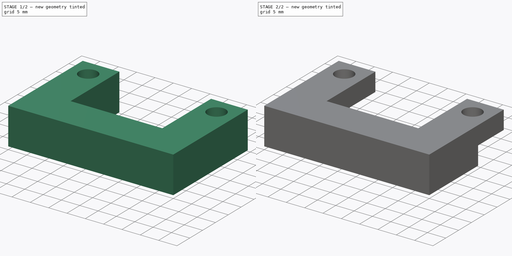
[diagram: build sequence overview — one tinted view per stage of 2, left to right]
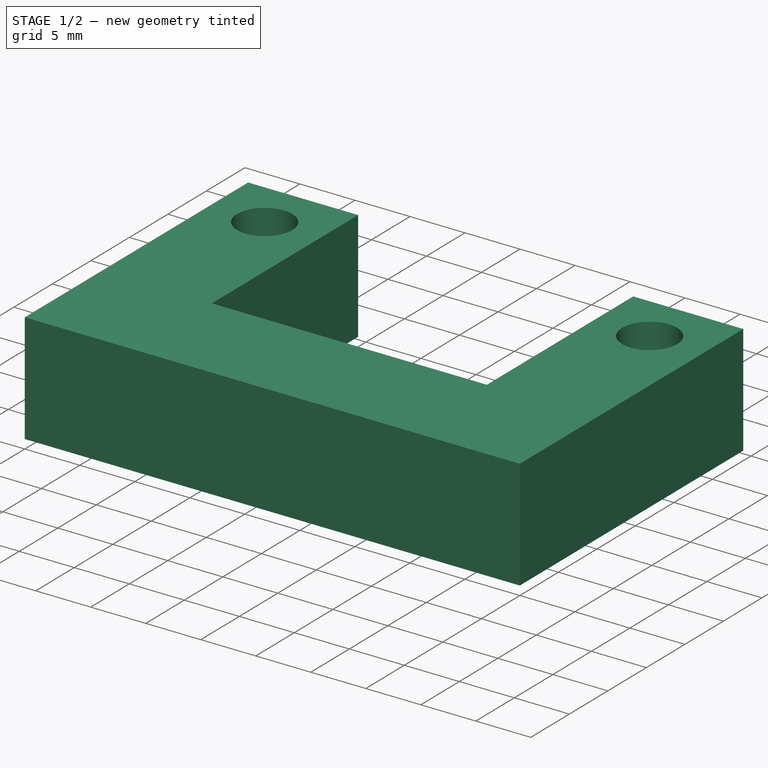
[diagram: stage 1 of 2 — iso view after this stage's code; geometry added in this stage tinted green]
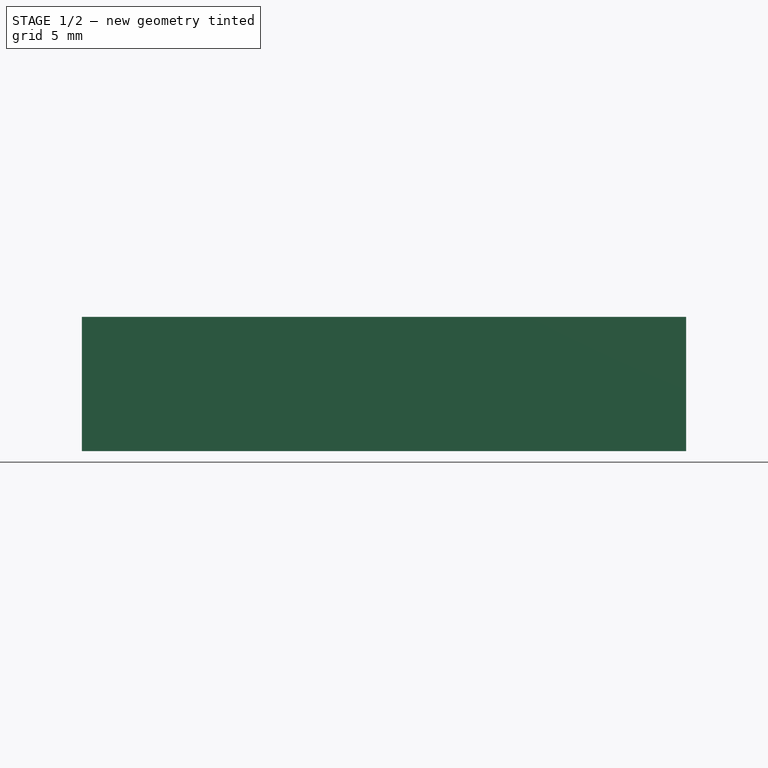
[diagram: stage 1 of 2 — front view after this stage's code; geometry added in this stage tinted green]
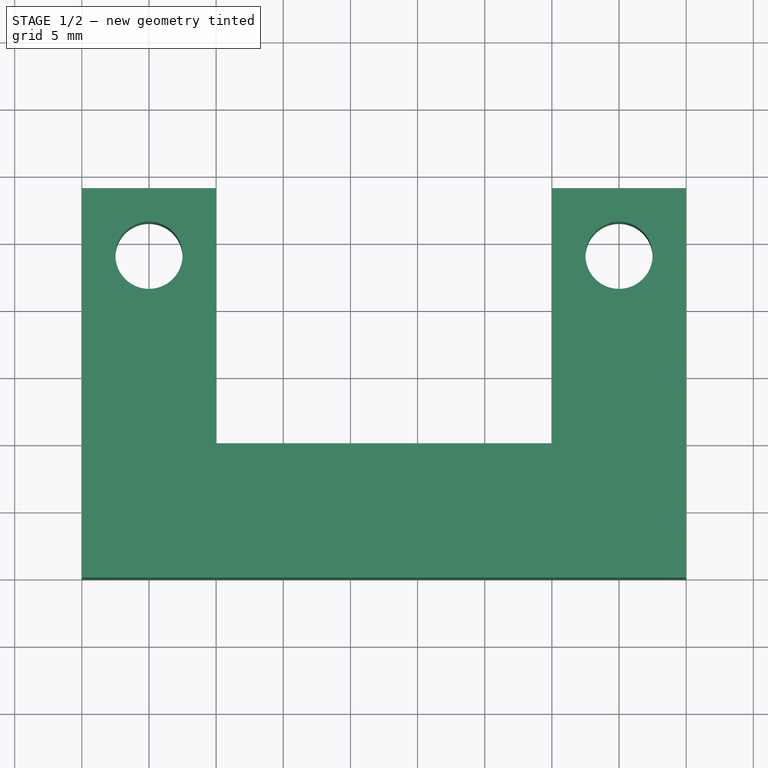
[diagram: stage 1 of 2 — top view after this stage's code; geometry added in this stage tinted green]
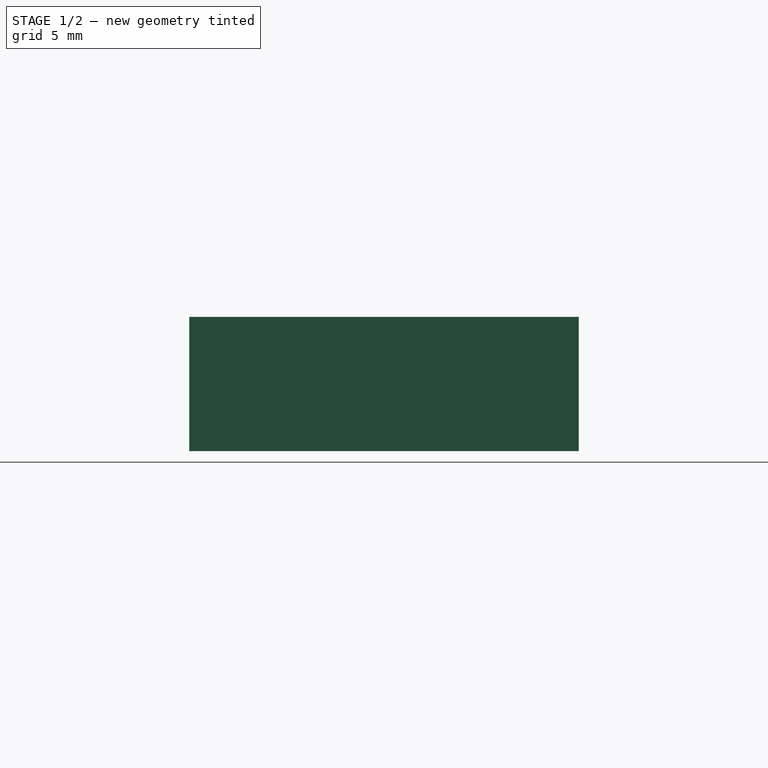
[diagram: stage 1 of 2 — right view after this stage's code; geometry added in this stage tinted green]
FCSTD DOCUMENT  (FreeCAD 0.19R24291 (Git))
Label: crochet moduleTEST_2
License: All rights reserved
LicenseURL: http://en.wikipedia.org/wiki/All_rights_reserved
objects: Sketcher::SketchObject×3, PartDesign::Body×2, PartDesign::Pad×1, PartDesign::Pocket×1
note: 9 computed .brp shape members not serialized (recipe doc carries the construction recipe); baked Part::Feature solids carry a one-line shape summary decoded from their .brp

FEATURE [Sketcher::SketchObject] Sketch
  FullyConstrained = false
  MapMode = 5
  Support = -> [XY_Plane]
  sketch-geometry (14):
    g0: LineSegment StartX=0 StartY=0 StartZ=0 EndX=45 EndY=0 EndZ=0
    g1: LineSegment StartX=48.9999 StartY=-13.0567 StartZ=0 EndX=48.9999 EndY=-13.0567 EndZ=0
    g2: LineSegment StartX=0 StartY=29 StartZ=0 EndX=0 EndY=0 EndZ=0
    g3: LineSegment StartX=45 StartY=29 StartZ=0 EndX=35 EndY=29 EndZ=0
    g4: LineSegment StartX=45 StartY=0 StartZ=0 EndX=45 EndY=29 EndZ=0
    g5: LineSegment StartX=10 StartY=29 StartZ=0 EndX=10 EndY=10 EndZ=0
    g6: LineSegment StartX=10 StartY=10 StartZ=0 EndX=35 EndY=10 EndZ=0
    g7: LineSegment StartX=35 StartY=10 StartZ=0 EndX=35 EndY=29 EndZ=0
    g8: LineSegment StartX=10 StartY=29 StartZ=0 EndX=0 EndY=29 EndZ=0
    g9: LineSegment StartX=10 StartY=19 StartZ=0 EndX=35 EndY=19 EndZ=0
    g10: LineSegment StartX=5 StartY=29 StartZ=0 EndX=5 EndY=24 EndZ=0
    g11: Circle CenterX=5 CenterY=24 CenterZ=0 NormalX=0 NormalY=0 NormalZ=1 AngleXU=0 Radius=2.5
    g12: LineSegment StartX=40 StartY=29 StartZ=0 EndX=40 EndY=24 EndZ=0
    g13: Circle CenterX=40 CenterY=24 CenterZ=0 NormalX=0 NormalY=0 NormalZ=1 AngleXU=0 Radius=2.5
  constraints (36):
    c: Coincident(g-1,g0)
    c: Horizontal(g0)
    c: Coincident(g2,g0)
    c: Vertical(g2)
    c: Horizontal(g3)
    c: Coincident(g2,g8)
    c: DistanceX(g0,g3) = 45
    c: Coincident(g4,g0)
    c: Coincident(g4,g3)
    c: Vertical(g4)
    c: Vertical(g5)
    c: Coincident(g6,g5)
    c: Horizontal(g6)
    c: Coincident(g7,g6)
    c: Vertical(g7)
    c: Coincident(g3,g7)
    c: Coincident(g8,g5)
    c: Tangent(g3,g8)
    c: DistanceX(g3,g3) = 10
    c: DistanceX(g8,g8) = 10
    c: Horizontal(g9)
    c: PointOnObject(g9,g5)
    c: PointOnObject(g9,g7)
    c: DistanceY(g6,g9) = 9
    c: DistanceY(g0,g6) = 10
    c: DistanceY(g9,g3) = 10
    c: Vertical(g10)
    c: Symmetric(g2,g5,g10)
    c: DistanceY(g10,g10) = 5
    c: Coincident(g11,g10)
    c: Radius(g11) = 2.5
    c: Vertical(g12)
    c: DistanceY(g12,g12) = 5
    c: Coincident(g13,g12)
    c: Radius(g13) = 2.5
    c: Symmetric(g3,g3,g12)
FEATURE [PartDesign::Pad] Pad
  AllowMultiFace = false
  Direction = (1,1,1)
  Length = 10
  Length2 = 100
  Profile = -> Sketch
  Type = 0
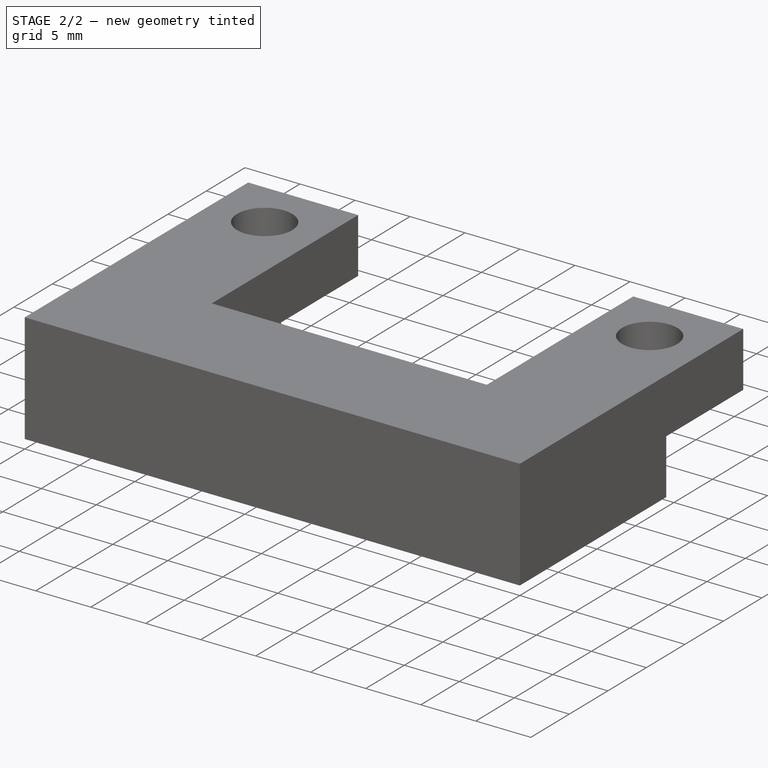
[diagram: stage 2 of 2 — iso view after this stage's code; geometry added in this stage tinted green]
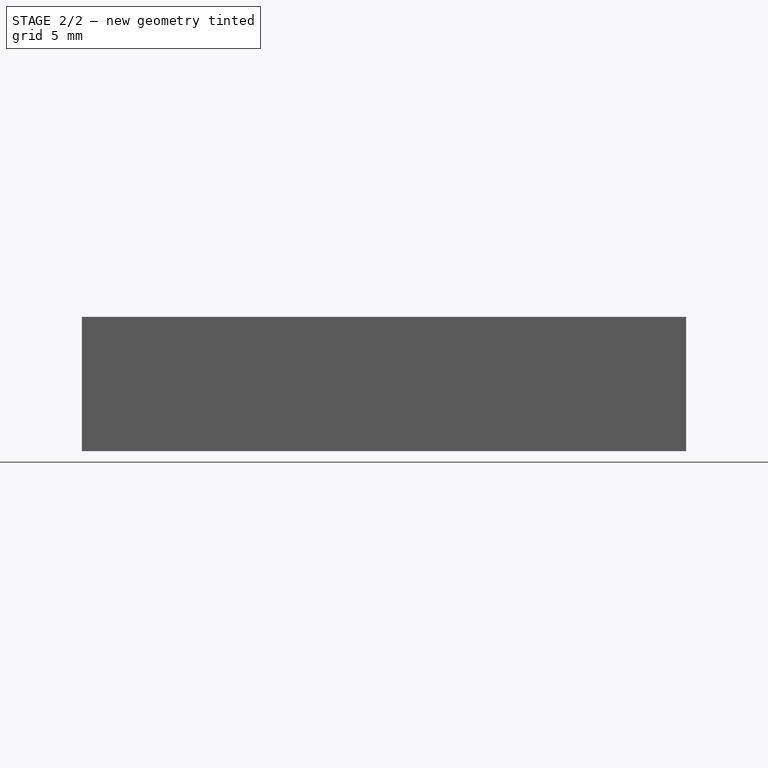
[diagram: stage 2 of 2 — front view after this stage's code; geometry added in this stage tinted green]
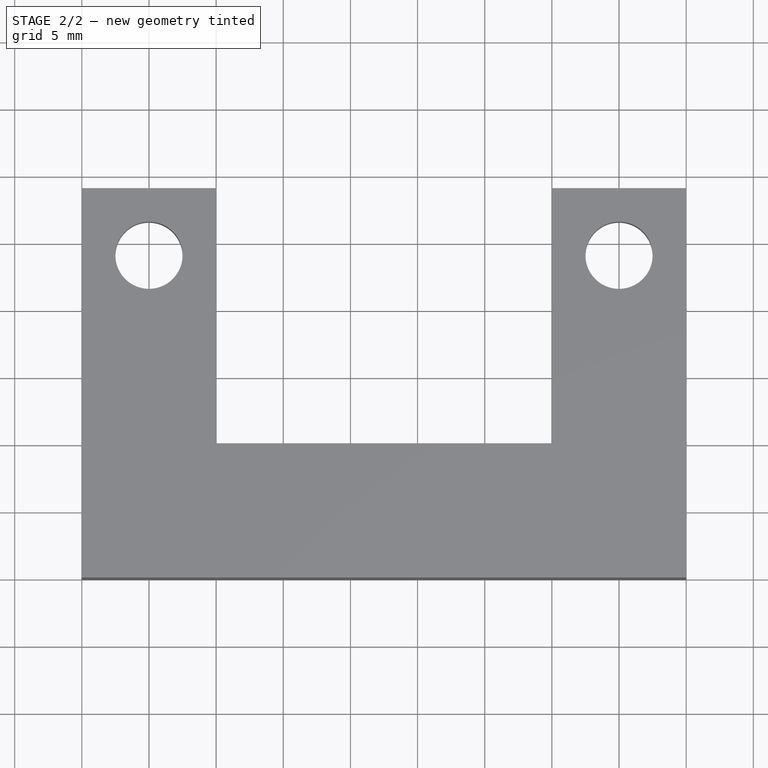
[diagram: stage 2 of 2 — top view after this stage's code; geometry added in this stage tinted green]
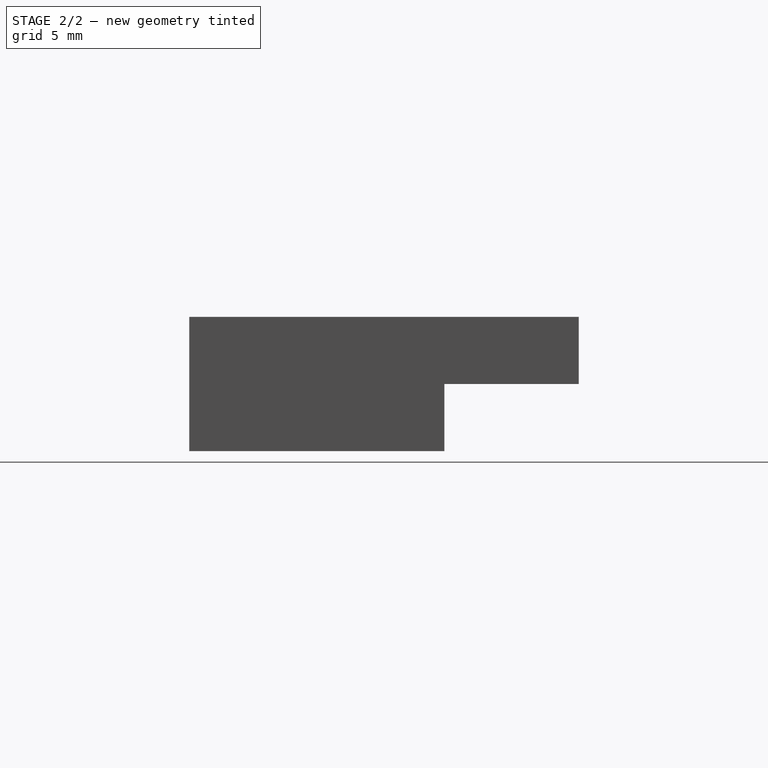
[diagram: stage 2 of 2 — right view after this stage's code; geometry added in this stage tinted green]
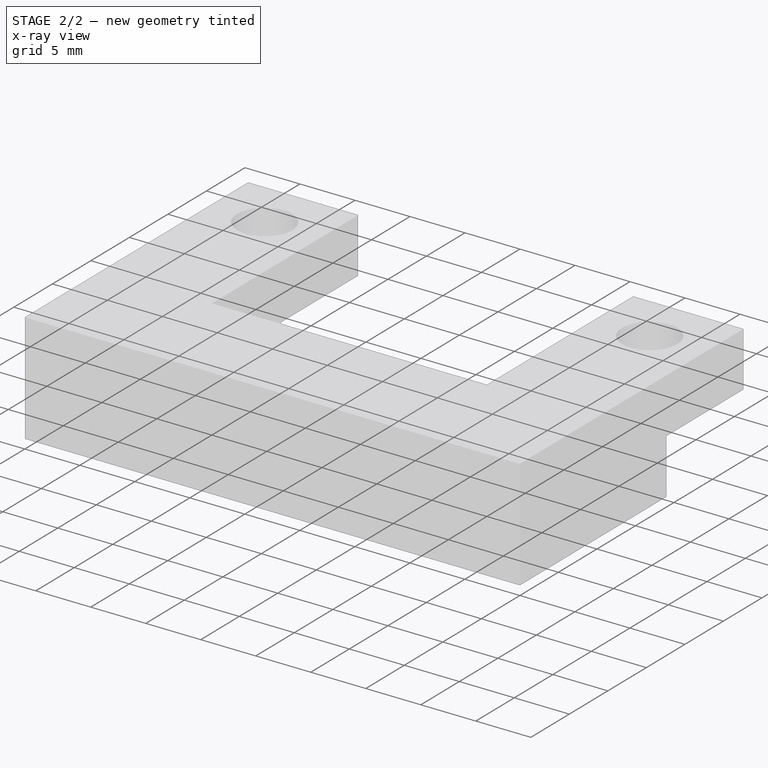
[diagram: stage 2 of 2 — x-ray composite at the iso view; earlier geometry ghosted, this stage's added geometry solid]
FEATURE [Sketcher::SketchObject] Sketch001
  ExternalGeometry = -> [Sketch]
  FullyConstrained = true
  MapMode = 5
  Support = -> [XY_Plane]
  sketch-geometry (4):
    g0: LineSegment StartX=0 StartY=29 StartZ=0 EndX=45 EndY=29 EndZ=0
    g1: LineSegment StartX=45 StartY=29 StartZ=0 EndX=45 EndY=19 EndZ=0
    g2: LineSegment StartX=45 StartY=19 StartZ=0 EndX=0 EndY=19 EndZ=0
    g3: LineSegment StartX=0 StartY=19 StartZ=0 EndX=0 EndY=29 EndZ=0
  constraints (11):
    c: Coincident(g0,g1)
    c: Coincident(g1,g2)
    c: Coincident(g2,g3)
    c: Coincident(g3,g0)
    c: Horizontal(g0)
    c: Horizontal(g2)
    c: Vertical(g1)
    c: Vertical(g3)
    c: Coincident(g0,g-3)
    c: PointOnObject(g1,g-4)
    c: DistanceY(g1,g1) = 10
FEATURE [PartDesign::Pocket] Pocket
  BaseFeature = -> Pad
  Length = 5
  Length2 = 100
  Profile = -> Sketch001
  Reversed = true
  Type = 0
FEATURE [PartDesign::Body] Body
  Group = -> [Sketch,Pad,Sketch001,Pocket]
  Origin = -> Origin
  Tip = -> Pocket
FEATURE [Sketcher::SketchObject] Sketch002
  FullyConstrained = false
  MapMode = 5
  Support = -> [XY_Plane001]
  expr: Constraints[39] = Sketch.Constraints[30]
  expr: Constraints[37] = Sketch.Constraints[28]
  expr: Constraints[43] = Sketch.Constraints[34]
  expr: Constraints[34] = Sketch.Constraints[25]
  expr: Constraints[32] = Sketch.Constraints[23]
  expr: Constraints[28] = Sketch.Constraints[19]
  expr: Constraints[41] = Sketch.Constraints[32]
  expr: Constraints[27] = Sketch.Constraints[18]
  expr: Constraints[33] = Sketch.Constraints[24]
  expr: Constraints[15] = Sketch.Constraints[6]
  sketch-geometry (26):
    g0: LineSegment StartX=0 StartY=-4.51266 StartZ=0 EndX=45 EndY=-4.51266 EndZ=0
    g1: LineSegment StartX=45 StartY=-4.51266 StartZ=0 EndX=45 EndY=-14.5127 EndZ=0
    g2: LineSegment StartX=45 StartY=-14.5127 StartZ=0 EndX=0 EndY=-14.5127 EndZ=0
    g3: LineSegment StartX=0 StartY=-14.5127 StartZ=0 EndX=0 EndY=-4.51266 EndZ=0
    g4: LineSegment StartX=0 StartY=0 StartZ=0 EndX=45 EndY=0 EndZ=0
    g5: LineSegment StartX=48.9999 StartY=-13.0567 StartZ=0 EndX=48.9999 EndY=-13.0567 EndZ=0
    g6: LineSegment StartX=0 StartY=29 StartZ=0 EndX=0 EndY=0 EndZ=0
    g7: LineSegment StartX=45 StartY=29 StartZ=0 EndX=35 EndY=29 EndZ=0
    g8: LineSegment StartX=45 StartY=0 StartZ=0 EndX=45 EndY=29 EndZ=0
    g9: LineSegment StartX=10 StartY=29 StartZ=0 EndX=10 EndY=10 EndZ=0
    g10: LineSegment StartX=10 StartY=10 StartZ=0 EndX=35 EndY=10 EndZ=0
    g11: LineSegment StartX=35 StartY=10 StartZ=0 EndX=35 EndY=29 EndZ=0
    g12: LineSegment StartX=10 StartY=29 StartZ=0 EndX=0 EndY=29 EndZ=0
    g13: LineSegment StartX=10 StartY=19 StartZ=0 EndX=35 EndY=19 EndZ=0
    g14: LineSegment StartX=5 StartY=29 StartZ=0 EndX=5 EndY=24 EndZ=0
    g15: Circle CenterX=5 CenterY=24 CenterZ=0 NormalX=0 NormalY=0 NormalZ=1 AngleXU=0 Radius=2.5
    g16: LineSegment StartX=40 StartY=29 StartZ=0 EndX=40 EndY=24 EndZ=0
    g17: Circle CenterX=40 CenterY=24 CenterZ=0 NormalX=0 NormalY=0 NormalZ=1 AngleXU=0 Radius=2.5
    g18: LineSegment StartX=45 StartY=29 StartZ=0 EndX=45 EndY=-26.3607 EndZ=0
    g19: LineSegment StartX=5 StartY=38.1473 StartZ=0 EndX=5 EndY=-25.9112 EndZ=0
    g20: LineSegment StartX=40 StartY=38.7092 StartZ=0 EndX=40 EndY=-27.035 EndZ=0
    g21: LineSegment StartX=0 StartY=-9.51266 StartZ=0 EndX=69.9143 EndY=-9.51266 EndZ=0
    g22: GeomPoint X=5 Y=-9.51266 Z=0
    g23: GeomPoint X=40 Y=-9.51266 Z=0
    g24: Circle CenterX=5 CenterY=-9.51266 CenterZ=0 NormalX=0 NormalY=0 NormalZ=1 AngleXU=0 Radius=2.2
    g25: Circle CenterX=40 CenterY=-9.51266 CenterZ=0 NormalX=0 NormalY=0 NormalZ=1 AngleXU=0 Radius=2.2
  constraints (63):
    c: Coincident(g0,g1)
    c: Coincident(g1,g2)
    c: Coincident(g2,g3)
    c: Coincident(g3,g0)
    c: Horizontal(g0)
    c: Horizontal(g2)
    c: Vertical(g1)
    c: Vertical(g3)
    c: PointOnObject(g0,g-2)
    c: Coincident(g-1,g4)
    c: Horizontal(g4)
    c: Coincident(g6,g4)
    c: Vertical(g6)
    c: Horizontal(g7)
    c: Coincident(g6,g12)
    c: DistanceX(g4,g7) = 45
    c: Coincident(g8,g4)
    c: Coincident(g8,g7)
    c: Vertical(g8)
    c: Vertical(g9)
    c: Coincident(g10,g9)
    c: Horizontal(g10)
    c: Coincident(g11,g10)
    c: Vertical(g11)
    c: Coincident(g7,g11)
    c: Coincident(g12,g9)
    c: Tangent(g7,g12)
    c: DistanceX(g7,g7) = 10
    c: DistanceX(g12,g12) = 10
    c: Horizontal(g13)
    c: PointOnObject(g13,g9)
    c: PointOnObject(g13,g11)
    c: DistanceY(g10,g13) = 9
    c: DistanceY(g4,g10) = 10
    c: DistanceY(g13,g7) = 10
    c: Vertical(g14)
    c: Symmetric(g6,g9,g14)
    c: DistanceY(g14,g14) = 5
    c: Coincident(g15,g14)
    c: Radius(g15) = 2.5
    c: Vertical(g16)
    c: DistanceY(g16,g16) = 5
    c: Coincident(g17,g16)
    c: Radius(g17) = 2.5
    c: Symmetric(g7,g7,g16)
    c: Coincident(g18,g7)
    c: Vertical(g18)
    c: PointOnObject(g0,g18)
    c: DistanceY(g1,g1) = 10
    c: Vertical(g19)
    c: PointOnObject(g14,g19)
    c: Vertical(g20)
    c: PointOnObject(g17,g20)
    c: Horizontal(g21)
    c: Symmetric(g0,g2,g21)
    c: PointOnObject(g22,g21)
    c: PointOnObject(g22,g19)
    c: PointOnObject(g23,g20)
    c: PointOnObject(g23,g21)
    c: Coincident(g24,g22)
    c: Coincident(g25,g23)
    c: Radius(g24) = 2.2
    c: Radius(g25) = 2.2
FEATURE [PartDesign::Body] Body001
  Group = -> [Sketch002]
  Origin = -> Origin001
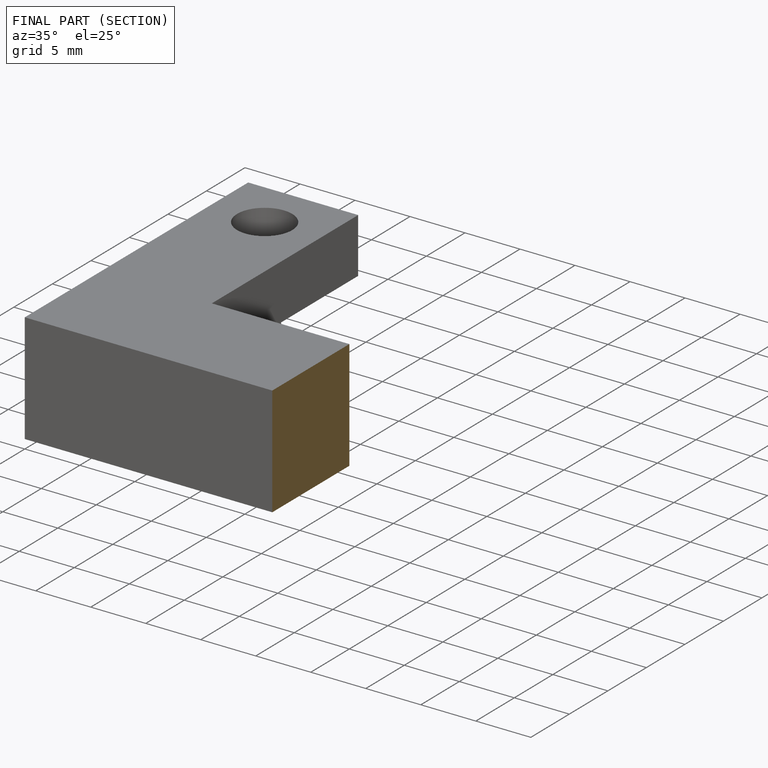
[diagram: finished part — half-section view (interior)]
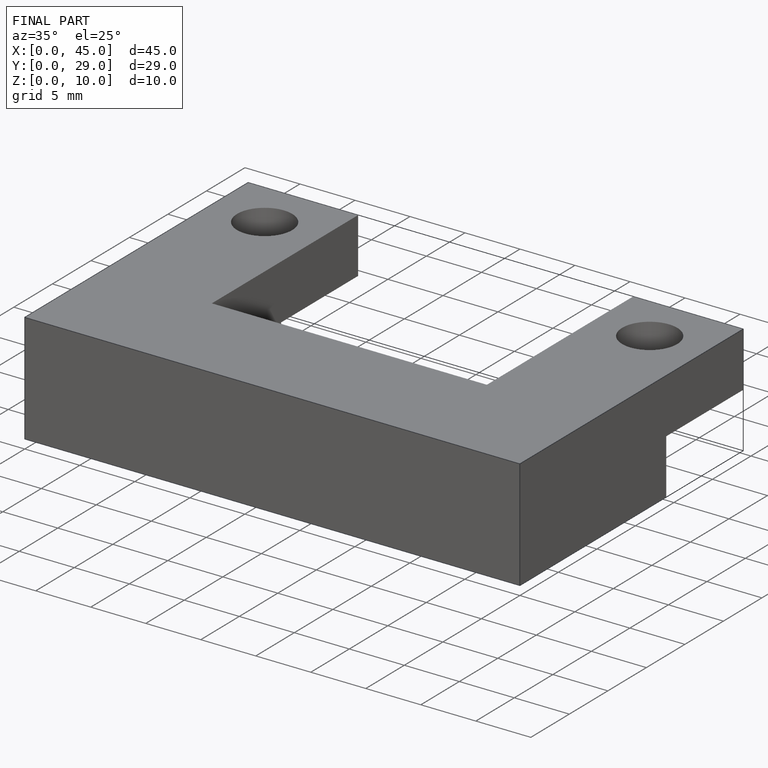
[diagram: finished part — iso view with bounding-box wireframe]
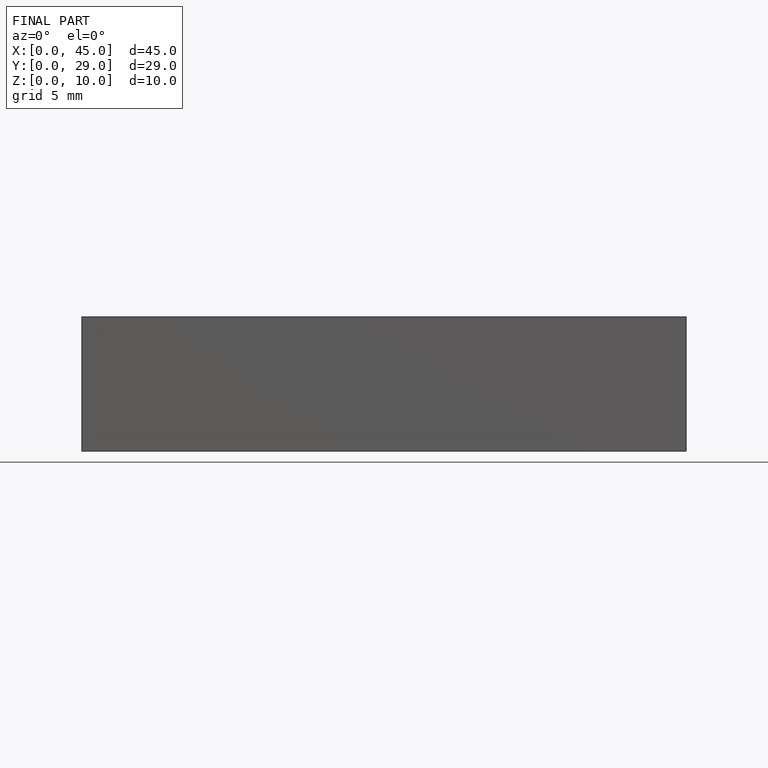
[diagram: finished part — front view with bounding-box wireframe]
